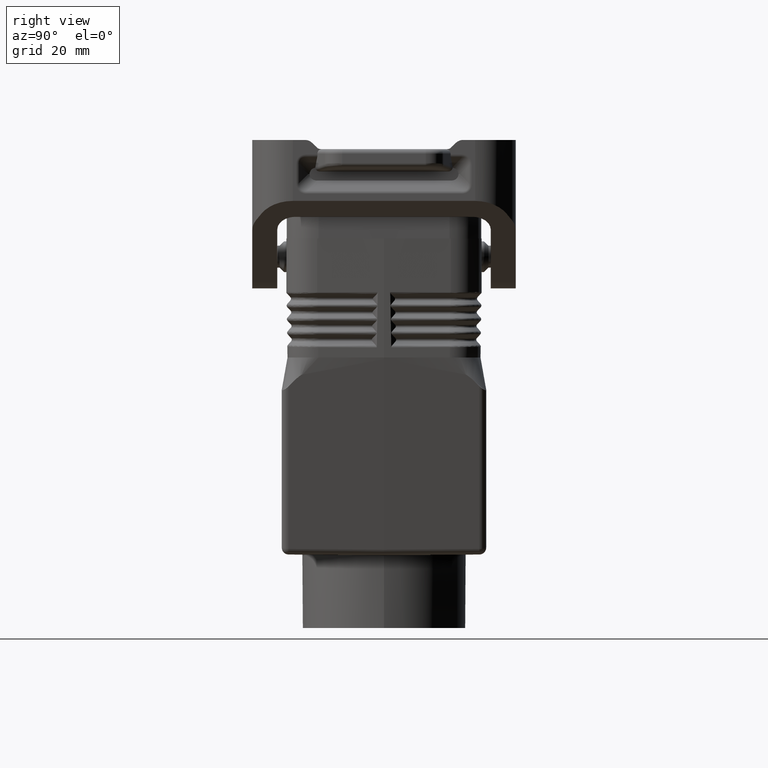
[diagram: clean part render]
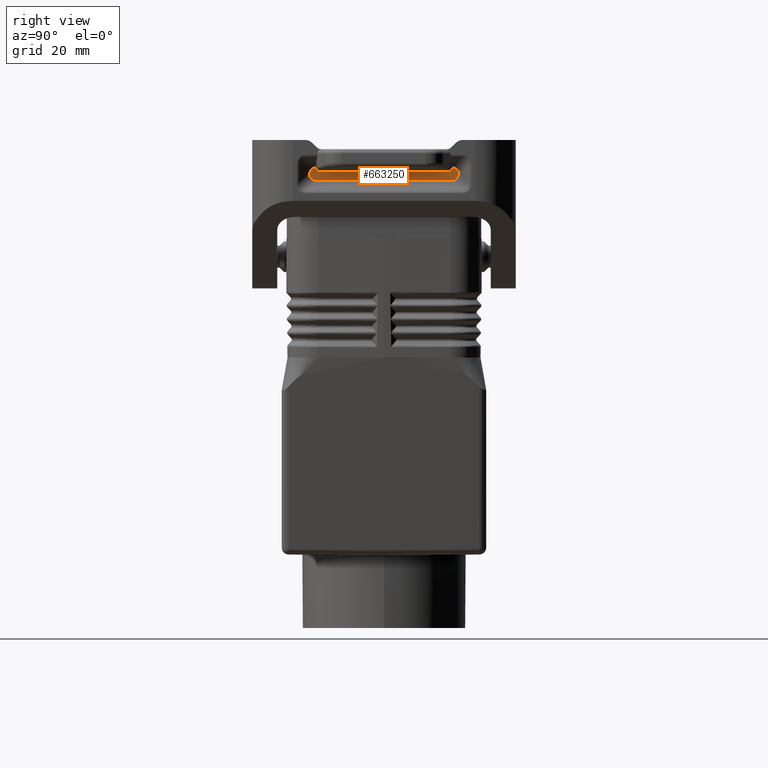
[diagram: same view with one face highlighted and labeled with its STEP entity id]
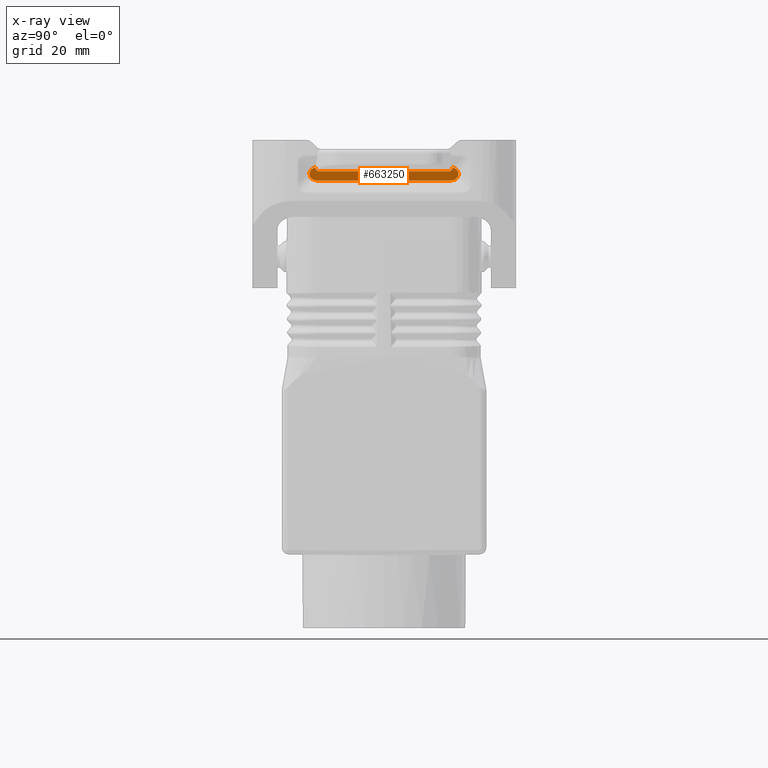
[diagram: x-ray of the same camera — body ghosted, the highlighted face saturated]
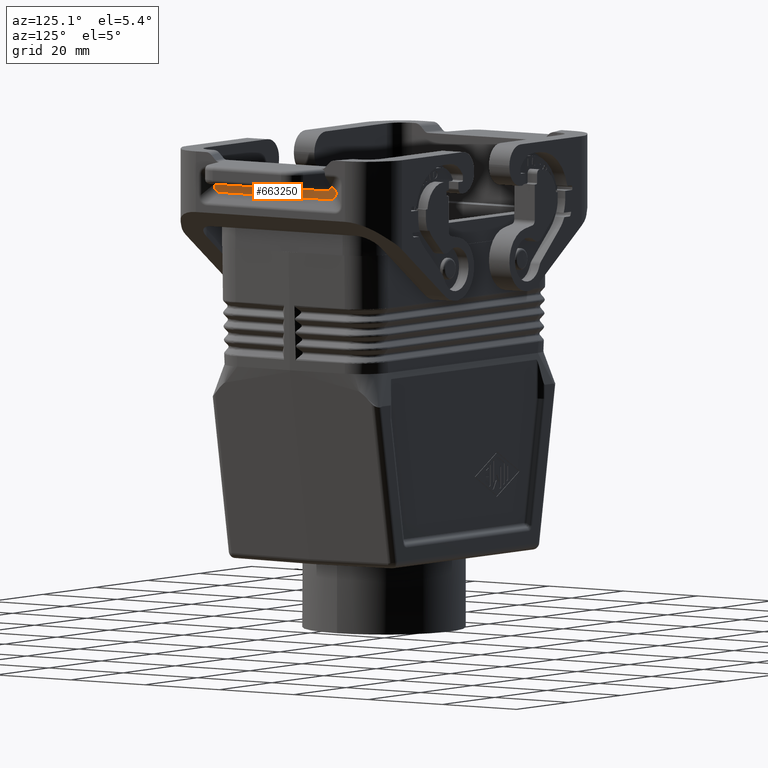
[diagram: same view with one face highlighted and labeled with its STEP entity id]
A machine part, right view. The second image highlights one B-rep face of the part: STEP entity #663250.
The next image is the same camera in x-ray: the body ghosted, the highlighted face saturated — about 0% of this face is hidden behind the body in this view.
A second angle (auxiliary view) of the same face is appended — the face is thin or edge-on in the first view.
In plain terms, the highlighted planar face has unit normal (1, -0, 0).
Its self-contained STEP definition (entity closure, byte-faithful):
#653860=CARTESIAN_POINT('',(110.328604106371,-14.2900000000853,
-12.5206659753607));
#653870=VERTEX_POINT('',#653860);
#654700=CARTESIAN_POINT('',(112.033443614572,-14.2900000000853,
-13.9499997816369));
#654710=VERTEX_POINT('',#654700);
#654740=CARTESIAN_POINT('',(106.818993028561,-14.2900000000853,
-17.751006362224));
#654750=DIRECTION('',(-9.86076131526265E-32,1.,2.4980018054066E-16));
#654760=DIRECTION('',(0.707106781186546,-1.76635401601925E-16,
0.707106781186549));
#654770=AXIS2_PLACEMENT_3D('',#654740,#654750,#654760);
#654780=ELLIPSE('',#654770,6.76113312432957,3.);
#654790=EDGE_CURVE('',#653870,#654710,#654780,.T.);
#654970=CARTESIAN_POINT('',(126.619999999999,-14.2900000000853,
-12.5206659753606));
#654980=DIRECTION('',(1.,1.97215226305253E-31,-2.49800180540659E-16));
#654990=VECTOR('',#654980,1.);
#655000=LINE('',#654970,#654990);
#655010=CARTESIAN_POINT('',(80.9113958936277,-14.2900000000853,
-12.5206659753607));
#655020=VERTEX_POINT('',#655010);
#655030=EDGE_CURVE('',#655020,#653870,#655000,.T.);
#655570=CARTESIAN_POINT('',(84.4210069714378,-14.2900000000853,
-17.751006362224));
#655580=DIRECTION('',(4.93038065763132E-32,-1.,-2.4980018054066E-16));
#655590=DIRECTION('',(-0.707106781186546,-1.76635401601925E-16,
0.707106781186549));
#655600=AXIS2_PLACEMENT_3D('',#655570,#655580,#655590);
#655610=ELLIPSE('',#655600,6.76113312432957,3.);
#655620=CARTESIAN_POINT('',(79.2065563854272,-14.2900000000853,
-13.9499997816369));
#655630=VERTEX_POINT('',#655620);
#655640=EDGE_CURVE('',#655020,#655630,#655610,.T.);
#656130=CARTESIAN_POINT('',(80.486603257119,-14.2900000000853,
-15.3442647749001));
#656140=VERTEX_POINT('',#656130);
#656350=CARTESIAN_POINT('',(84.4210069714379,-14.2900000000853,
-10.1489932010497));
#656360=DIRECTION('',(4.93038065763132E-32,-1.,-2.4980018054066E-16));
#656370=DIRECTION('',(-0.70710678118655,1.76635401601924E-16,
-0.707106781186545));
#656380=AXIS2_PLACEMENT_3D('',#656350,#656360,#656370);
#656390=ELLIPSE('',#656380,6.76113312432957,3.);
#656400=EDGE_CURVE('',#655630,#656140,#656390,.T.);
#660040=CARTESIAN_POINT('',(81.4880713536133,-14.2900000000853,
-14.5051224339688));
#660050=VERTEX_POINT('',#660040);
#660080=CARTESIAN_POINT('',(126.619999999999,-14.2900000000853,
-14.5051224339688));
#660090=DIRECTION('',(-1.,-1.23259516440783E-31,2.49800180540659E-16));
#660100=VECTOR('',#660090,1.);
#660110=LINE('',#660080,#660100);
#660120=CARTESIAN_POINT('',(109.751928646386,-14.2900000000853,
-14.5051224339688));
#660130=VERTEX_POINT('',#660120);
#660140=EDGE_CURVE('',#660130,#660050,#660110,.T.);
#660690=CARTESIAN_POINT('',(106.818993028561,-14.2900000000853,
-10.1489932010497));
#660700=DIRECTION('',(-9.86076131526265E-32,1.,2.4980018054066E-16));
#660710=DIRECTION('',(0.707106781186549,1.76635401601924E-16,
-0.707106781186546));
#660720=AXIS2_PLACEMENT_3D('',#660690,#660700,#660710);
#660730=ELLIPSE('',#660720,6.76113312432957,3.);
#660740=CARTESIAN_POINT('',(110.75339674288,-14.2900000000853,
-15.3442647749001));
#660750=VERTEX_POINT('',#660740);
#660760=EDGE_CURVE('',#654710,#660750,#660730,.T.);
#662680=CARTESIAN_POINT('',(109.728575335501,-14.2900000000853,
-15.5089422715121));
#662690=DIRECTION('',(-9.86076131526265E-32,1.,2.4980018054066E-16));
#662700=DIRECTION('',(0.950610638494441,-7.75344566991954E-17,
0.310385911376774));
#662710=AXIS2_PLACEMENT_3D('',#662680,#662690,#662700);
#662720=ELLIPSE('',#662710,1.03896633052763,1.);
#662730=EDGE_CURVE('',#660130,#660750,#662720,.T.);
#663040=CARTESIAN_POINT('',(95.6200002623439,-14.2900000000852,
-8.84073824944413));
#663050=DIRECTION('',(-1.30963236218329E-32,-1.,-2.4980018054066E-16));
#663060=DIRECTION('',(-1.,-4.93038065763132E-32,2.49800180540659E-16));
#663070=AXIS2_PLACEMENT_3D('',#663040,#663050,#663060);
#663080=PLANE('',#663070);
#663090=CARTESIAN_POINT('',(81.5114246644983,-14.2900000000853,
-15.5089422715121));
#663100=DIRECTION('',(4.93038065763132E-32,-1.,-2.4980018054066E-16));
#663110=DIRECTION('',(-0.950610638494441,-7.75344566991957E-17,
0.310385911376775));
#663120=AXIS2_PLACEMENT_3D('',#663090,#663100,#663110);
#663130=ELLIPSE('',#663120,1.03896633052763,1.);
#663140=EDGE_CURVE('',#660050,#656140,#663130,.T.);
#663150=ORIENTED_EDGE('',*,*,#663140,.F.);
#663160=ORIENTED_EDGE('',*,*,#656400,.T.);
#663170=ORIENTED_EDGE('',*,*,#655640,.T.);
#663180=ORIENTED_EDGE('',*,*,#655030,.F.);
#663190=ORIENTED_EDGE('',*,*,#654790,.F.);
#663200=ORIENTED_EDGE('',*,*,#660760,.F.);
#663210=ORIENTED_EDGE('',*,*,#662730,.T.);
#663220=ORIENTED_EDGE('',*,*,#660140,.F.);
#663230=EDGE_LOOP('',(#663220,#663210,#663200,#663190,#663180,#663170,
#663160,#663150));
#663240=FACE_OUTER_BOUND('',#663230,.T.);
#663250=ADVANCED_FACE('',(#663240),#663080,.T.);